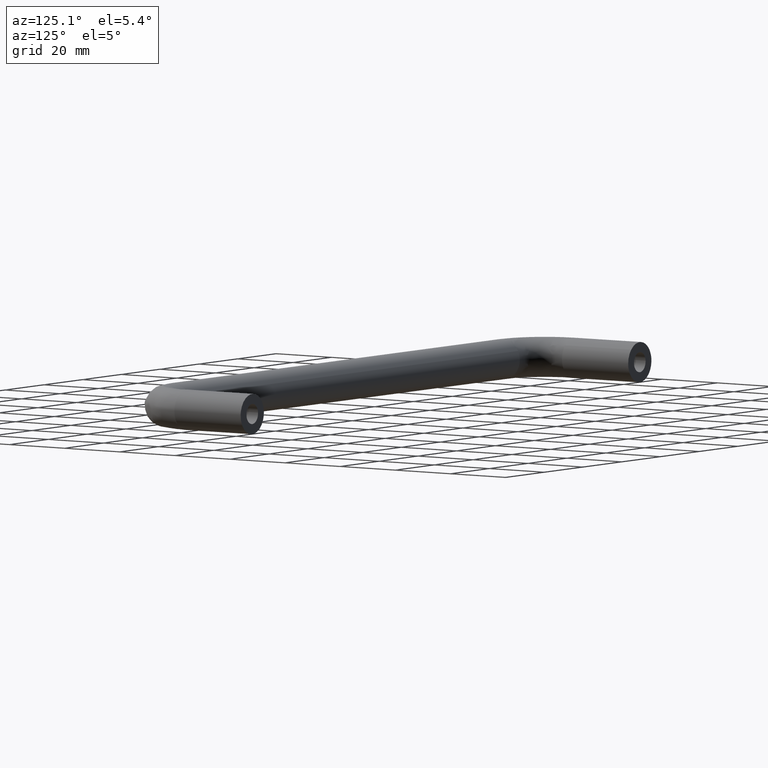
[diagram: clean part render]
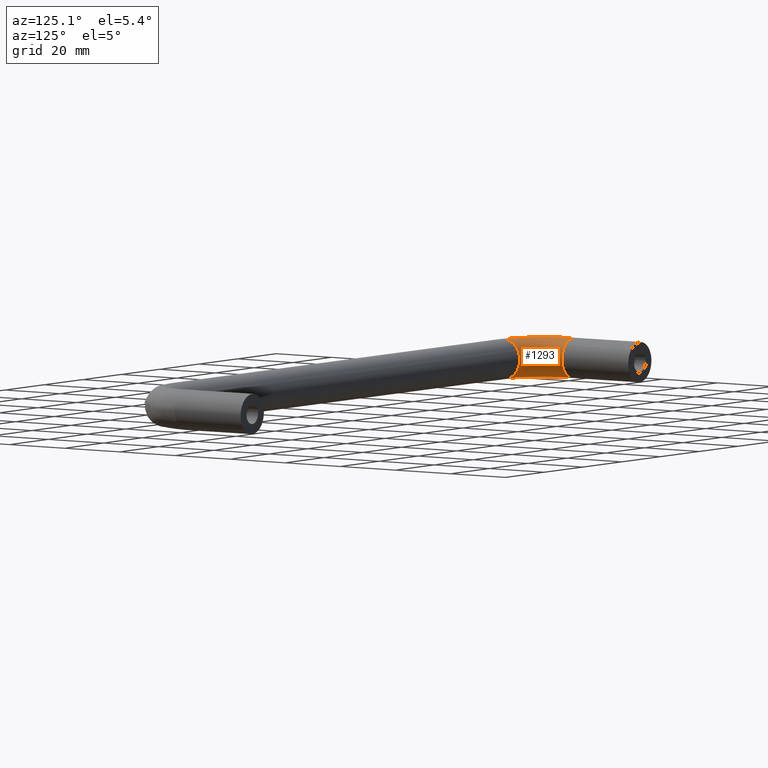
[diagram: same view with one face highlighted and labeled with its STEP entity id]
A machine part, auxiliary view. The second image highlights one B-rep face of the part: STEP entity #1293.
In plain terms, the highlighted face is a freeform B-spline surface patch.
Its self-contained STEP definition (entity closure, byte-faithful):
#669=CARTESIAN_POINT('',(14.999999999962130,-33.626367044218853,2.669095138143554));
#670=VERTEX_POINT('',#669);
#676=CARTESIAN_POINT('',(14.999999999641719,-38.924603760555939,5.999526265221087));
#677=VERTEX_POINT('',#676);
#678=CARTESIAN_POINT('',(14.999999999962130,-33.626367044218846,2.669095138143554));
#679=CARTESIAN_POINT('',(14.999999999863466,-35.257710391988013,5.953444298289303));
#680=CARTESIAN_POINT('',(14.999999999641721,-38.924603760555939,5.999526265221087));
#688=(BOUNDED_CURVE()B_SPLINE_CURVE(2,(#678,#679,#680),.UNSPECIFIED.,.F.,.U.)B_SPLINE_CURVE_WITH_KNOTS((3,3),(0.575619190625443,0.747784295913289),.UNSPECIFIED.)CURVE()GEOMETRIC_REPRESENTATION_ITEM()RATIONAL_B_SPLINE_CURVE((0.876408099965738,0.796725658643487,0.994854295624589))REPRESENTATION_ITEM(''));
#689=EDGE_CURVE('',#670,#677,#688,.T.);
#708=CARTESIAN_POINT('',(14.999999999300099,-39.418399512873421,-5.985394042803470));
#709=VERTEX_POINT('',#708);
#723=CARTESIAN_POINT('',(15.0,-34.869874609136403,-4.352248184069436));
#724=VERTEX_POINT('',#723);
#725=CARTESIAN_POINT('',(14.999999999300098,-39.418399512873421,-5.985394042803470));
#726=CARTESIAN_POINT('',(15.000000000000002,-39.209454698681569,-6.000000000000001));
#727=CARTESIAN_POINT('',(15.0,-39.0,-6.0));
#728=CARTESIAN_POINT('',(15.000000000000005,-36.606244372761751,-6.000000000000002));
#729=CARTESIAN_POINT('',(15.000000000000002,-34.869874609136403,-4.352248184069437));
#737=(BOUNDED_CURVE()B_SPLINE_CURVE(2,(#725,#726,#727,#728,#729),.UNSPECIFIED.,.F.,.U.)B_SPLINE_CURVE_WITH_KNOTS((3,2,3),(0.237833686338552,0.250000000000000,0.371049455114185),.UNSPECIFIED.)CURVE()GEOMETRIC_REPRESENTATION_ITEM()RATIONAL_B_SPLINE_CURVE((0.972879875971277,0.985746276922417,1.0,0.858181741823967,0.853699666667547))REPRESENTATION_ITEM(''));
#738=EDGE_CURVE('',#709,#724,#737,.T.);
#838=CARTESIAN_POINT('',(15.0,-33.0,0.0));
#839=VERTEX_POINT('',#838);
#840=CARTESIAN_POINT('',(15.000000000000002,-34.869874609136403,-4.352248184069437));
#841=CARTESIAN_POINT('',(15.000000000000005,-32.999999999999993,-2.577805120553616));
#842=CARTESIAN_POINT('',(15.0,-33.0,0.0));
#850=(BOUNDED_CURVE()B_SPLINE_CURVE(2,(#840,#841,#842),.UNSPECIFIED.,.F.,.U.)B_SPLINE_CURVE_WITH_KNOTS((3,3),(0.371049455114185,0.500000000000000),.UNSPECIFIED.)CURVE()GEOMETRIC_REPRESENTATION_ITEM()RATIONAL_B_SPLINE_CURVE((0.853699666667547,0.848925039362580,1.0))REPRESENTATION_ITEM(''));
#851=EDGE_CURVE('',#724,#839,#850,.T.);
#853=CARTESIAN_POINT('',(15.0,-33.0,0.0));
#854=CARTESIAN_POINT('',(14.999999999999996,-33.0,1.408043576882220));
#855=CARTESIAN_POINT('',(14.999999999962126,-33.626367044218846,2.669095138143554));
#863=(BOUNDED_CURVE()B_SPLINE_CURVE(2,(#853,#854,#855),.UNSPECIFIED.,.F.,.U.)B_SPLINE_CURVE_WITH_KNOTS((3,3),(0.500000000000000,0.575619190625442),.UNSPECIFIED.)CURVE()GEOMETRIC_REPRESENTATION_ITEM()RATIONAL_B_SPLINE_CURVE((1.0,0.911406607414585,0.876408099965739))REPRESENTATION_ITEM(''));
#864=EDGE_CURVE('',#839,#670,#863,.T.);
#888=CARTESIAN_POINT('',(2.905318393534327,-24.0,-5.249678564654328));
#889=VERTEX_POINT('',#888);
#890=CARTESIAN_POINT('',(6.000000000000003,-24.0,0.0));
#891=VERTEX_POINT('',#890);
#892=CARTESIAN_POINT('',(2.905318393534328,-24.0,-5.249678564654329));
#893=CARTESIAN_POINT('',(6.000000000000004,-24.000000000000004,-3.536995534122605));
#894=CARTESIAN_POINT('',(6.000000000000003,-24.0,0.0));
#902=(BOUNDED_CURVE()B_SPLINE_CURVE(2,(#892,#893,#894),.UNSPECIFIED.,.F.,.U.)B_SPLINE_CURVE_WITH_KNOTS((3,3),(0.332484288971113,0.500000000000000),.UNSPECIFIED.)CURVE()GEOMETRIC_REPRESENTATION_ITEM()RATIONAL_B_SPLINE_CURVE((0.870495137452581,0.803743136779700,1.0))REPRESENTATION_ITEM(''));
#903=EDGE_CURVE('',#889,#891,#902,.T.);
#942=CARTESIAN_POINT('',(4.423666076306624,-24.000000000093660,4.053539002548424));
#943=VERTEX_POINT('',#942);
#949=CARTESIAN_POINT('',(6.000000000000003,-24.0,0.0));
#950=CARTESIAN_POINT('',(6.000000000000004,-24.000000000000004,2.333270639824936));
#951=CARTESIAN_POINT('',(4.423666076306624,-24.000000000093650,4.053539002548424));
#959=(BOUNDED_CURVE()B_SPLINE_CURVE(2,(#949,#950,#951),.UNSPECIFIED.,.F.,.U.)B_SPLINE_CURVE_WITH_KNOTS((3,3),(0.500000000000000,0.618415132535130),.UNSPECIFIED.)CURVE()GEOMETRIC_REPRESENTATION_ITEM()RATIONAL_B_SPLINE_CURVE((1.0,0.861268042702257,0.853959790286676))REPRESENTATION_ITEM(''));
#960=EDGE_CURVE('',#891,#943,#959,.T.);
#987=CARTESIAN_POINT('',(-0.418399521864808,-24.000000003452239,-5.985394042174940));
#988=VERTEX_POINT('',#987);
#989=CARTESIAN_POINT('',(-0.418399521864808,-24.000000003452239,-5.985394042174940));
#990=CARTESIAN_POINT('',(-0.209454707705879,-24.000000000000004,-6.0));
#991=CARTESIAN_POINT('',(2.939055E-015,-24.0,-6.0));
#992=CARTESIAN_POINT('',(1.549547416939634,-24.000000000000004,-6.000000000000001));
#993=CARTESIAN_POINT('',(2.905318393534327,-23.999999999999993,-5.249678564654328));
#1001=(BOUNDED_CURVE()B_SPLINE_CURVE(2,(#989,#990,#991,#992,#993),.UNSPECIFIED.,.F.,.U.)B_SPLINE_CURVE_WITH_KNOTS((3,2,3),(0.237833685821840,0.250000000000000,0.332484288971113),.UNSPECIFIED.)CURVE()GEOMETRIC_REPRESENTATION_ITEM()RATIONAL_B_SPLINE_CURVE((0.972879874878387,0.985746276317052,1.0,0.903363644406847,0.870495137452581))REPRESENTATION_ITEM(''));
#1002=EDGE_CURVE('',#988,#889,#1001,.T.);
#1019=CARTESIAN_POINT('',(0.075396239423425,-24.000000000351459,5.999526265221347));
#1020=VERTEX_POINT('',#1019);
#1036=CARTESIAN_POINT('',(4.423666076306624,-24.000000000093650,4.053539002548424));
#1037=CARTESIAN_POINT('',(2.670381788582841,-24.000000000197517,5.966914998358674));
#1038=CARTESIAN_POINT('',(0.075396239423425,-24.000000000351456,5.999526265221347));
#1046=(BOUNDED_CURVE()B_SPLINE_CURVE(2,(#1036,#1037,#1038),.UNSPECIFIED.,.F.,.U.)B_SPLINE_CURVE_WITH_KNOTS((3,3),(0.618415132535130,0.747784295914499),.UNSPECIFIED.)CURVE()GEOMETRIC_REPRESENTATION_ITEM()RATIONAL_B_SPLINE_CURVE((0.853959790286676,0.845975485573860,0.994854295627374))REPRESENTATION_ITEM(''));
#1047=EDGE_CURVE('',#943,#1020,#1046,.T.);
#1221=CARTESIAN_POINT('',(0.075396239423425,-24.000000000351456,5.999526265221348));
#1222=CARTESIAN_POINT('',(0.075396240003026,-38.924603759983349,5.999526265222895));
#1223=CARTESIAN_POINT('',(14.999999999641719,-38.924603760555939,5.999526265221087));
#1231=(BOUNDED_CURVE()B_SPLINE_CURVE(2,(#1221,#1222,#1223),.UNSPECIFIED.,.F.,.U.)B_SPLINE_CURVE_WITH_KNOTS((3,3),(-1.747842683620043,-0.278273130995957),.UNSPECIFIED.)CURVE()GEOMETRIC_REPRESENTATION_ITEM()RATIONAL_B_SPLINE_CURVE((0.893710737946339,0.628668022907015,0.884455039437955))REPRESENTATION_ITEM(''));
#1232=EDGE_CURVE('',#1020,#677,#1231,.T.);
#1236=CARTESIAN_POINT('',(-0.418399521864808,-24.000000003452232,-5.985394042174940));
#1237=CARTESIAN_POINT('',(-0.418399502548165,-39.418399508052850,-5.985394043042591));
#1238=CARTESIAN_POINT('',(14.999999999300092,-39.418399512873421,-5.985394042803470));
#1246=(BOUNDED_CURVE()B_SPLINE_CURVE(2,(#1236,#1237,#1238),.UNSPECIFIED.,.F.,.U.)B_SPLINE_CURVE_WITH_KNOTS((3,3),(-1.747842683201474,-0.278273131040178),.UNSPECIFIED.)CURVE()GEOMETRIC_REPRESENTATION_ITEM()RATIONAL_B_SPLINE_CURVE((0.873607430427855,0.614526639245023,0.864559931578036))REPRESENTATION_ITEM(''));
#1247=EDGE_CURVE('',#988,#709,#1246,.T.);
#1252=CARTESIAN_POINT('',(0.111136663809359,-22.967747138470866,5.999526265222896));
#1253=CARTESIAN_POINT('',(-1.075809718332357,-40.087857074436414,5.999526265222895));
#1254=CARTESIAN_POINT('',(16.043406238818967,-38.888085868730428,5.999526265222895));
#1255=CARTESIAN_POINT('',(6.096295672185008,-23.382701414939049,5.924130025922778));
#1256=CARTESIAN_POINT('',(5.386488657308915,-33.620715794384978,5.924130025922778));
#1257=CARTESIAN_POINT('',(15.623968427573633,-32.903239393707267,5.924130025922779));
#1258=CARTESIAN_POINT('',(6.021079986663216,-23.377486671216936,-0.075396239300116));
#1259=CARTESIAN_POINT('',(5.305276746031371,-33.701988566597805,-0.075396239300116));
#1260=CARTESIAN_POINT('',(15.629239516021315,-32.978451151612383,-0.075396239300116));
#1261=CARTESIAN_POINT('',(5.945864301141421,-23.372271927494822,-6.074922504523011));
#1262=CARTESIAN_POINT('',(5.224064834753819,-33.783261338810640,-6.074922504523011));
#1263=CARTESIAN_POINT('',(15.634510604468993,-33.053662909517492,-6.074922504523011));
#1264=CARTESIAN_POINT('',(-0.039294707234223,-22.957317651026646,-5.999526265222896));
#1265=CARTESIAN_POINT('',(-1.238233540887451,-40.250402618862097,-5.999526265222895));
#1266=CARTESIAN_POINT('',(16.053948415714327,-39.038509384540653,-5.999526265222895));
#1267=CARTESIAN_POINT('',(-0.210587221361740,-22.945441849370450,-5.997368459328780));
#1268=CARTESIAN_POINT('',(-1.423181565535869,-40.435489245220339,-5.997368459328780));
#1269=CARTESIAN_POINT('',(16.065952534085760,-39.209792954106518,-5.997368459328782));
#1270=CARTESIAN_POINT('',(-0.381476246979482,-22.933594021788547,-5.985394066133805));
#1271=CARTESIAN_POINT('',(-1.607693935402575,-40.620139890313247,-5.985394066133805));
#1272=CARTESIAN_POINT('',(16.077928376126145,-39.380673056232020,-5.985394066133806));
#1280=(BOUNDED_SURFACE()B_SPLINE_SURFACE(2,2,((#1252,#1255,#1258,#1261,#1264,#1267,#1270),(#1253,#1256,#1259,#1262,#1265,#1268,#1271),(#1254,#1257,#1260,#1263,#1266,#1269,#1272)),.UNSPECIFIED.,.F.,.F.,.U.)B_SPLINE_SURFACE_WITH_KNOTS((3,3),(3,2,2,3),(0.0,28.097866280938810),(0.0,9.941125496954284,19.882250993908571,20.279895634562891),.UNSPECIFIED.)GEOMETRIC_REPRESENTATION_ITEM()RATIONAL_B_SPLINE_SURFACE(((0.921487970695580,0.651590392860676,0.921487970695580,0.651590392860676,0.921487970695580,0.910692077877960,0.900759855662087),(0.601353110281207,0.425220862167464,0.601353110281207,0.425220862167464,0.601353110281207,0.594307827075570,0.587826165988871),(0.911307631818076,0.644391806205615,0.911307631818076,0.644391806205615,0.911307631818076,0.900631008975608,0.890808515145976)))REPRESENTATION_ITEM('')SURFACE());
#1281=ORIENTED_EDGE('',*,*,#851,.F.);
#1282=ORIENTED_EDGE('',*,*,#738,.F.);
#1283=ORIENTED_EDGE('',*,*,#1247,.F.);
#1284=ORIENTED_EDGE('',*,*,#1002,.T.);
#1285=ORIENTED_EDGE('',*,*,#903,.T.);
#1286=ORIENTED_EDGE('',*,*,#960,.T.);
#1287=ORIENTED_EDGE('',*,*,#1047,.T.);
#1288=ORIENTED_EDGE('',*,*,#1232,.T.);
#1289=ORIENTED_EDGE('',*,*,#689,.F.);
#1290=ORIENTED_EDGE('',*,*,#864,.F.);
#1291=EDGE_LOOP('',(#1281,#1282,#1283,#1284,#1285,#1286,#1287,#1288,#1289,#1290));
#1292=FACE_OUTER_BOUND('',#1291,.T.);
#1293=ADVANCED_FACE('',(#1292),#1280,.T.);